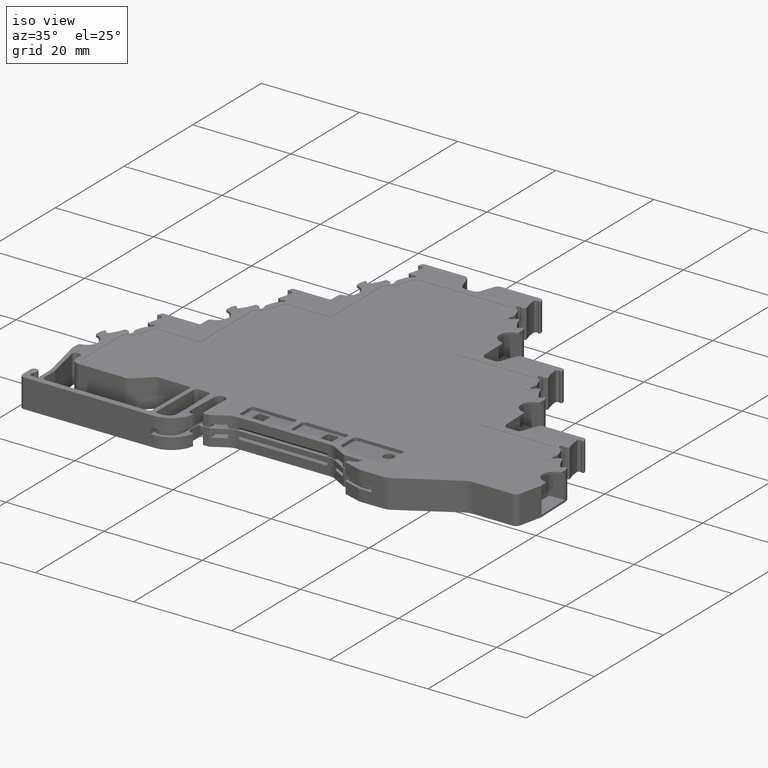
[diagram: clean part render]
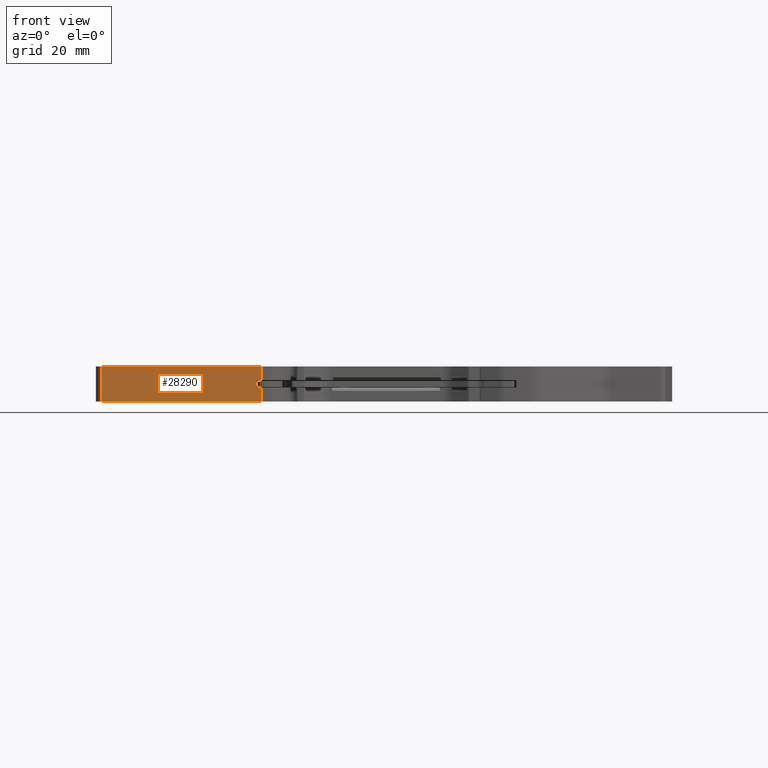
[diagram: tour spotlight — one face highlighted and labeled with its STEP entity id]
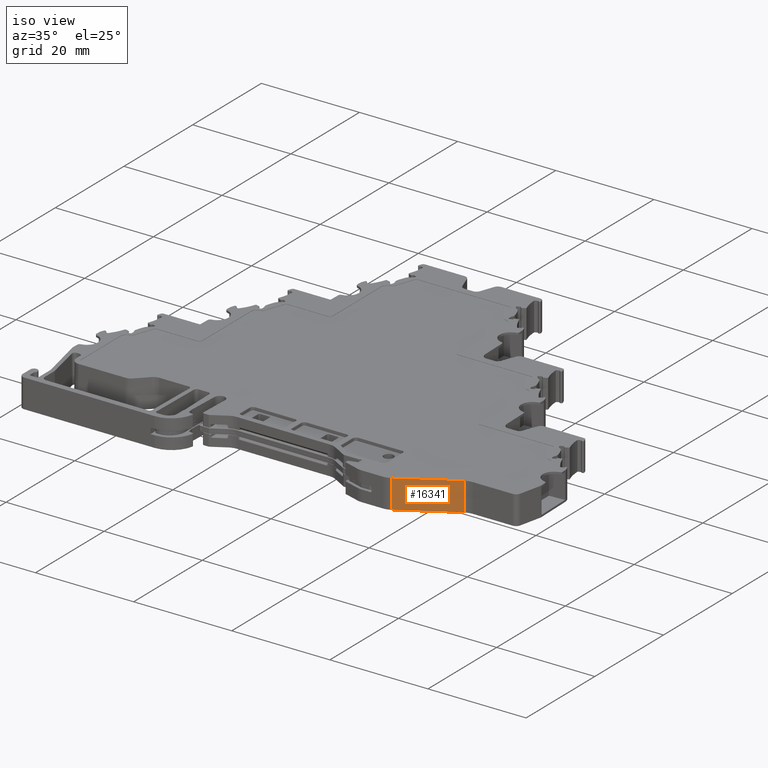
[diagram: tour spotlight — one face highlighted and labeled with its STEP entity id]
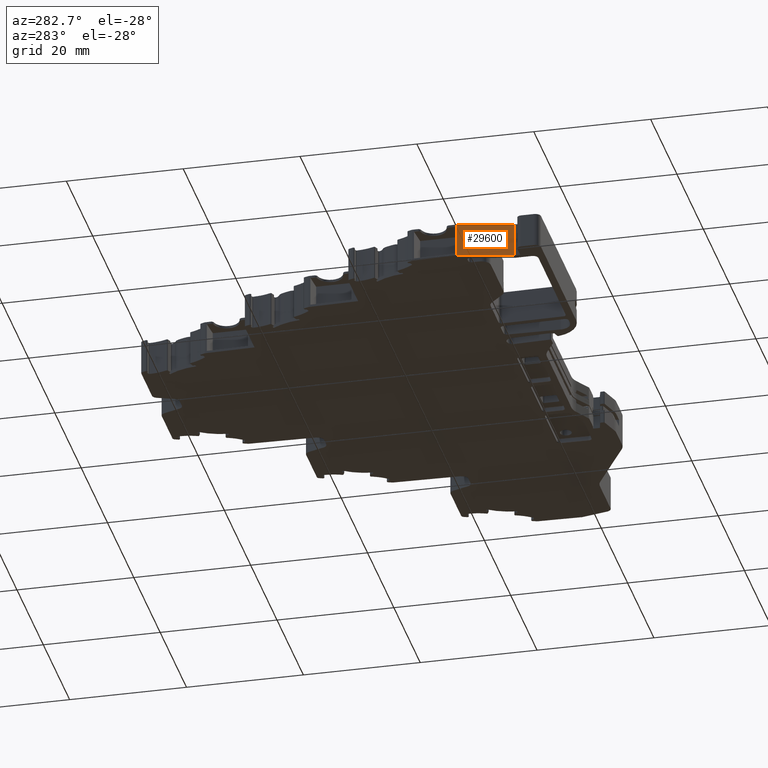
[diagram: tour spotlight — one face highlighted and labeled with its STEP entity id]
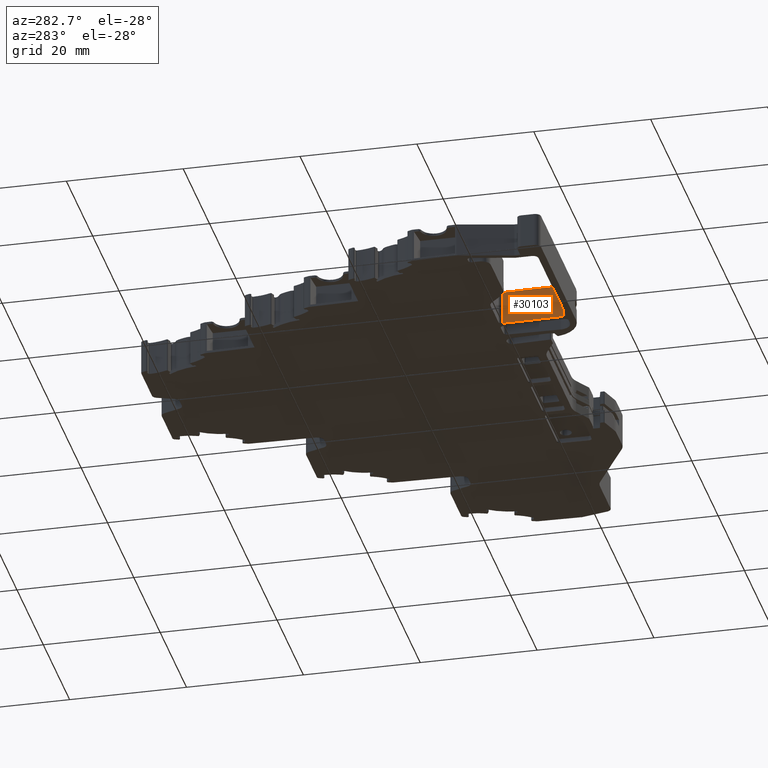
[diagram: tour spotlight — one face highlighted and labeled with its STEP entity id]
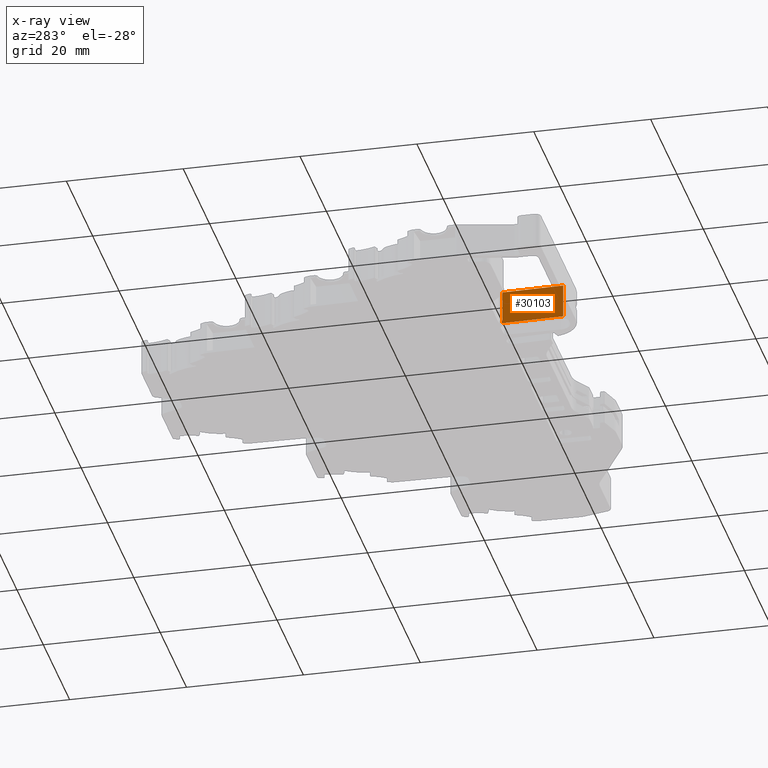
[diagram: x-ray of the same camera — body ghosted, this tour face saturated]
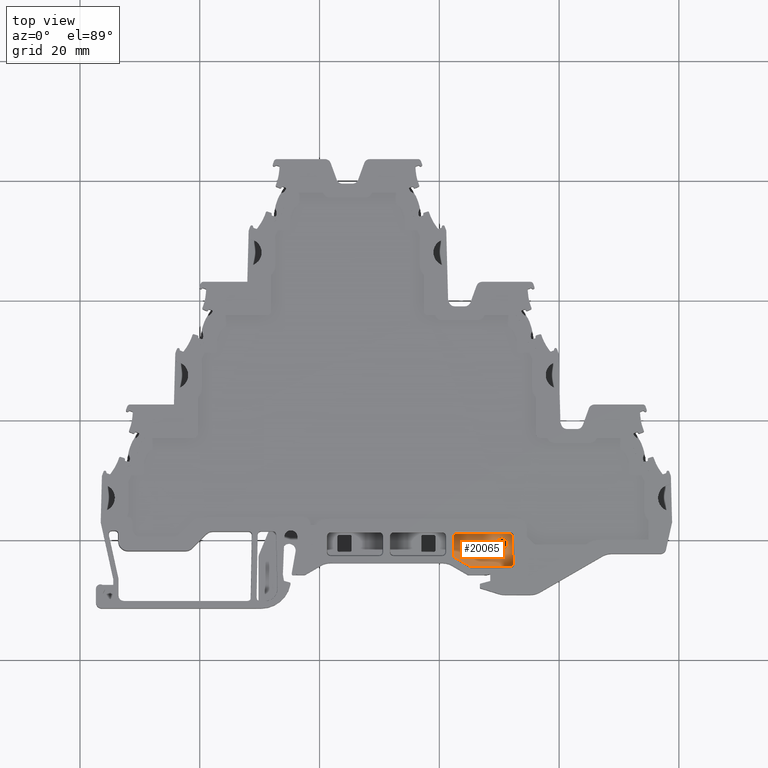
[diagram: tour spotlight — one face highlighted and labeled with its STEP entity id]
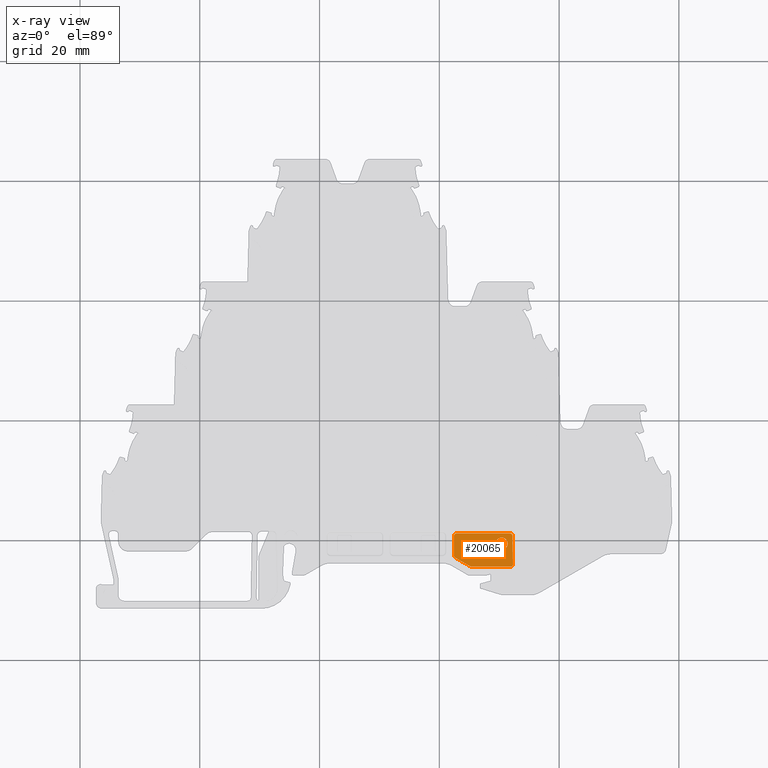
[diagram: x-ray of the same camera — body ghosted, this tour face saturated]
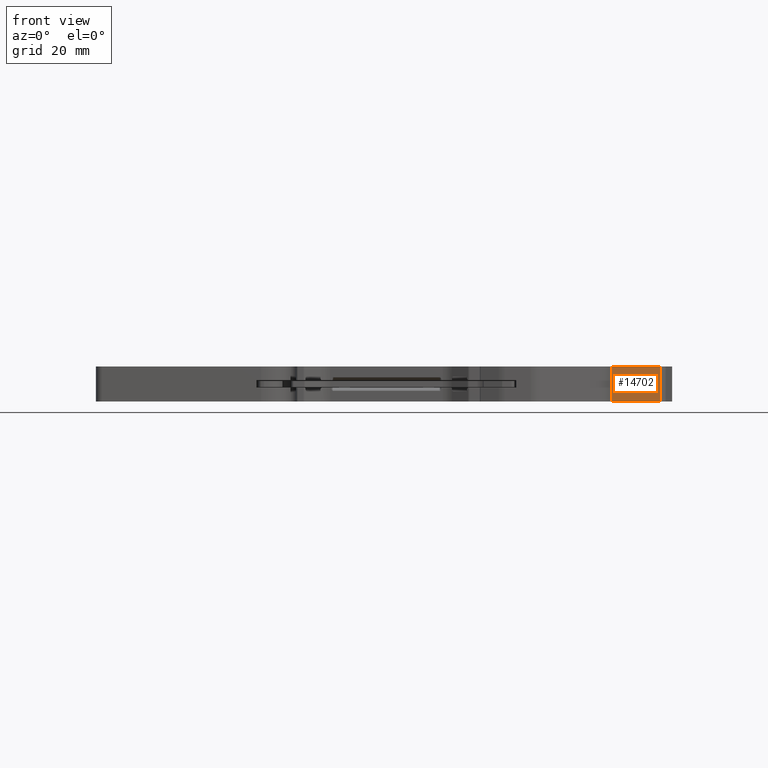
[diagram: tour spotlight — one face highlighted and labeled with its STEP entity id]
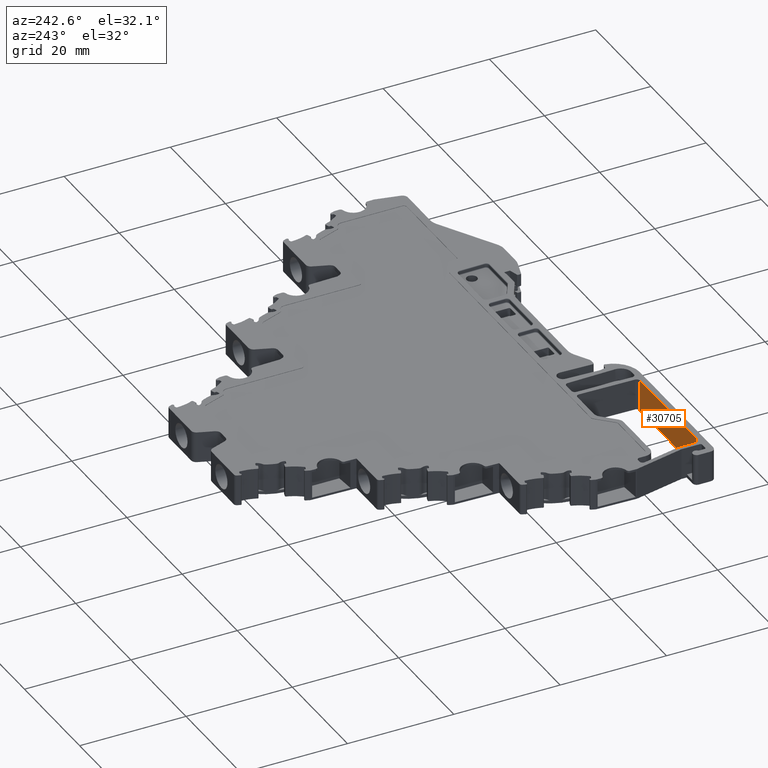
[diagram: tour spotlight — one face highlighted and labeled with its STEP entity id]
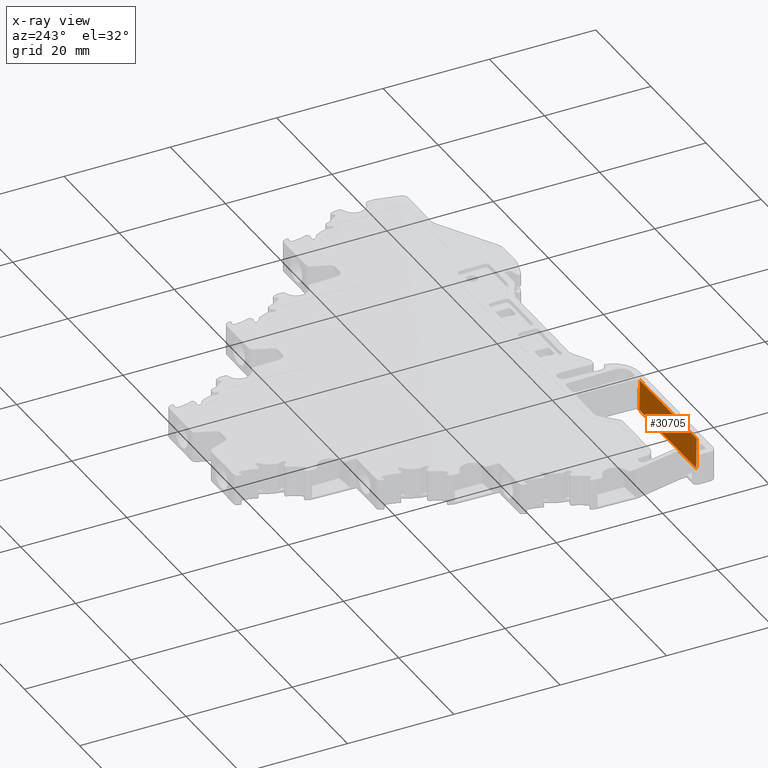
[diagram: x-ray of the same camera — body ghosted, this tour face saturated]
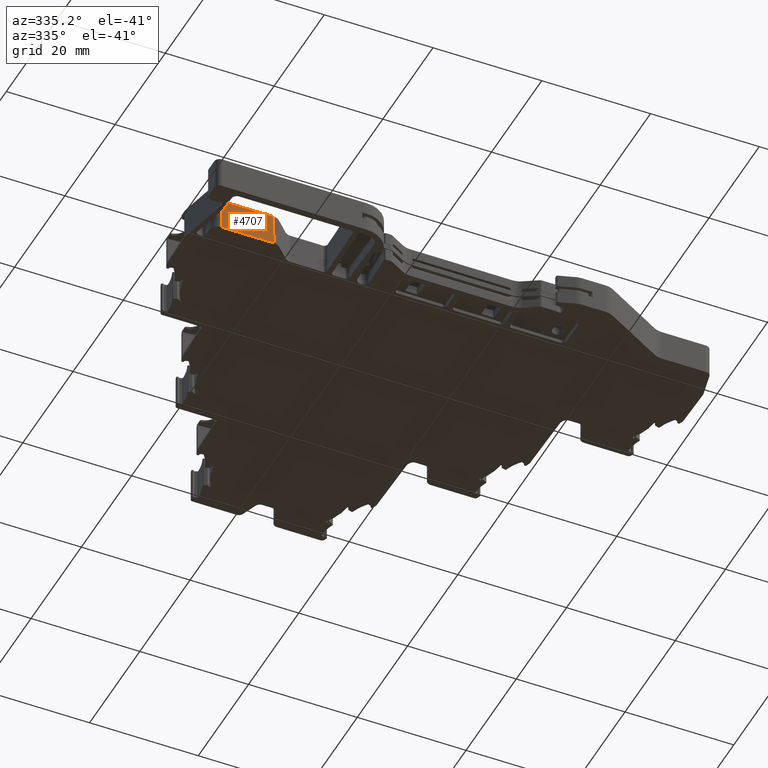
[diagram: tour spotlight — one face highlighted and labeled with its STEP entity id]
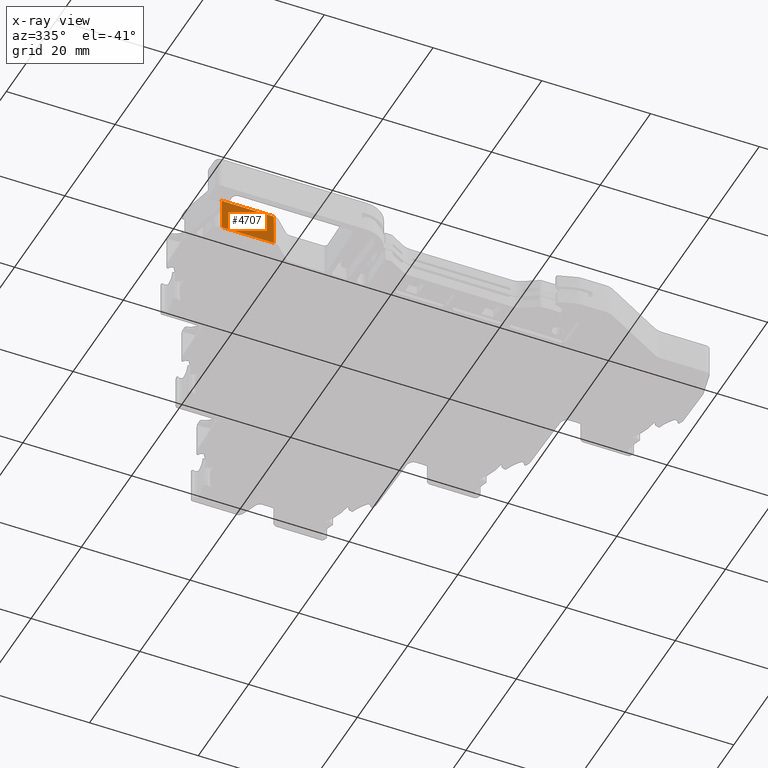
[diagram: x-ray of the same camera — body ghosted, this tour face saturated]
A machine part: a face-by-face anatomy tour. The part has 1124 B-rep faces; the first image is the clean iso view, then the 8 largest visible faces are spotlighted one at a time (largest first), each with its STEP entity span.

Face 1 — front view, entity #28290. In plain terms, the highlighted planar face has unit normal (-0, -1, 0).
Definition (entity closure, byte-faithful):
#50 = DIRECTION ( 'NONE',  ( 0.000000000000000000, 0.000000000000000000, 1.000000000000000000 ) ) ;
#295 = EDGE_CURVE ( 'NONE', #28306, #16494, #25337, .T. ) ;
#420 = VECTOR ( 'NONE', #10841, 1000.000000000000000 ) ;
#983 = CARTESIAN_POINT ( 'NONE',  ( 1250.236955818815886, 748.5878086220640171, 8.673617379884039416E-16 ) ) ;
#1634 = VECTOR ( 'NONE', #50, 1000.000000000000000 ) ;
#2865 = DIRECTION ( 'NONE',  ( -4.177685300582320068E-15, -1.000000000000000000, 0.000000000000000000 ) ) ;
#3018 = VERTEX_POINT ( 'NONE', #3692 ) ;
#3050 = PLANE ( 'NONE',  #17465 ) ;
#3094 = DIRECTION ( 'NONE',  ( 0.000000000000000000, 0.000000000000000000, 1.000000000000000000 ) ) ;
#3344 = EDGE_CURVE ( 'NONE', #31357, #9419, #11938, .T. ) ;
#3583 = EDGE_CURVE ( 'NONE', #9419, #3018, #27565, .T. ) ;
#3692 = CARTESIAN_POINT ( 'NONE',  ( 1249.428791505572008, 748.5878086220640171, 2.324999999999999734 ) ) ;
#5001 = LINE ( 'NONE', #13668, #420 ) ;
#5100 = DIRECTION ( 'NONE',  ( 0.000000000000000000, 0.000000000000000000, -1.000000000000000000 ) ) ;
#5616 = ORIENTED_EDGE ( 'NONE', *, *, #7896, .F. ) ;
#7754 = CARTESIAN_POINT ( 'NONE',  ( 1249.428791505572008, 748.5878086220640171, 8.673617379884039416E-16 ) ) ;
#7896 = EDGE_CURVE ( 'NONE', #34183, #26585, #8105, .T. ) ;
#8003 = CARTESIAN_POINT ( 'NONE',  ( 1223.661880274700025, 748.5878086220640171, 8.673617379884039416E-16 ) ) ;
#8082 = VERTEX_POINT ( 'NONE', #23552 ) ;
#8105 = LINE ( 'NONE', #36750, #13572 ) ;
#9041 = CARTESIAN_POINT ( 'NONE',  ( 1223.661880274700025, 748.5878086220640171, 5.850000000000000533 ) ) ;
#9419 = VERTEX_POINT ( 'NONE', #24438 ) ;
#10234 = ORIENTED_EDGE ( 'NONE', *, *, #17284, .F. ) ;
#10841 = DIRECTION ( 'NONE',  ( 1.000000000000000000, -4.177685300582320068E-15, 0.000000000000000000 ) ) ;
#11938 = LINE ( 'NONE', #29659, #35299 ) ;
#13572 = VECTOR ( 'NONE', #19420, 1000.000000000000000 ) ;
#13668 = CARTESIAN_POINT ( 'NONE',  ( 1250.236955818815886, 748.5878086220640171, 5.850000000000000533 ) ) ;
#14889 = VECTOR ( 'NONE', #5100, 1000.000000000000000 ) ;
#15656 = ORIENTED_EDGE ( 'NONE', *, *, #18305, .T. ) ;
#15875 = DIRECTION ( 'NONE',  ( -1.000000000000000000, 4.177685300582320068E-15, 0.000000000000000000 ) ) ;
#16494 = VERTEX_POINT ( 'NONE', #9041 ) ;
#17284 = EDGE_CURVE ( 'NONE', #16494, #8082, #5001, .T. ) ;
#17465 = AXIS2_PLACEMENT_3D ( 'NONE', #20557, #2865, #20007 ) ;
#18305 = EDGE_CURVE ( 'NONE', #28306, #31357, #32407, .T. ) ;
#19420 = DIRECTION ( 'NONE',  ( -1.000000000000000000, 4.177685300582320068E-15, 0.000000000000000000 ) ) ;
#20007 = DIRECTION ( 'NONE',  ( 1.000000000000000000, -4.177685300582320068E-15, 0.000000000000000000 ) ) ;
#20557 = CARTESIAN_POINT ( 'NONE',  ( 1250.236955818815886, 748.5878086220640171, 8.673617379884039416E-16 ) ) ;
#21280 = ORIENTED_EDGE ( 'NONE', *, *, #31606, .F. ) ;
#21437 = VECTOR ( 'NONE', #29590, 1000.000000000000000 ) ;
#22817 = ORIENTED_EDGE ( 'NONE', *, *, #3344, .T. ) ;
#23552 = CARTESIAN_POINT ( 'NONE',  ( 1250.236955818815886, 748.5878086220640171, 5.850000000000000533 ) ) ;
#23997 = CARTESIAN_POINT ( 'NONE',  ( 1249.428791505572008, 748.5878086220640171, 3.524999999999999911 ) ) ;
#24438 = CARTESIAN_POINT ( 'NONE',  ( 1250.236955818815886, 748.5878086220640171, 2.324999999999999734 ) ) ;
#24898 = CARTESIAN_POINT ( 'NONE',  ( 1250.236955818815886, 748.5878086220640171, 2.324999999999999734 ) ) ;
#25337 = LINE ( 'NONE', #8003, #35536 ) ;
#26585 = VERTEX_POINT ( 'NONE', #23997 ) ;
#27565 = LINE ( 'NONE', #24898, #32518 ) ;
#28290 = ADVANCED_FACE ( 'NONE', ( #30367 ), #3050, .T. ) ;
#28306 = VERTEX_POINT ( 'NONE', #34876 ) ;
#28896 = CARTESIAN_POINT ( 'NONE',  ( 1250.236955818815886, 748.5878086220640171, 8.673617379884039416E-16 ) ) ;
#29590 = DIRECTION ( 'NONE',  ( 1.000000000000000000, -4.177685300582320068E-15, 0.000000000000000000 ) ) ;
#29659 = CARTESIAN_POINT ( 'NONE',  ( 1250.236955818815886, 748.5878086220640171, 8.673617379884039416E-16 ) ) ;
#29761 = CARTESIAN_POINT ( 'NONE',  ( 1250.236955818815886, 748.5878086220640171, 8.673617379884039416E-16 ) ) ;
#30367 = FACE_OUTER_BOUND ( 'NONE', #31938, .T. ) ;
#30986 = DIRECTION ( 'NONE',  ( 0.000000000000000000, 0.000000000000000000, 1.000000000000000000 ) ) ;
#31357 = VERTEX_POINT ( 'NONE', #983 ) ;
#31542 = CARTESIAN_POINT ( 'NONE',  ( 1250.236955818815886, 748.5878086220640171, 3.524999999999999911 ) ) ;
#31606 = EDGE_CURVE ( 'NONE', #26585, #3018, #34317, .T. ) ;
#31938 = EDGE_LOOP ( 'NONE', ( #22817, #35304, #21280, #5616, #32807, #10234, #33150, #15656 ) ) ;
#32407 = LINE ( 'NONE', #29761, #21437 ) ;
#32518 = VECTOR ( 'NONE', #15875, 1000.000000000000000 ) ;
#32807 = ORIENTED_EDGE ( 'NONE', *, *, #37241, .T. ) ;
#33150 = ORIENTED_EDGE ( 'NONE', *, *, #295, .F. ) ;
#34183 = VERTEX_POINT ( 'NONE', #31542 ) ;
#34317 = LINE ( 'NONE', #7754, #14889 ) ;
#34355 = LINE ( 'NONE', #28896, #1634 ) ;
#34876 = CARTESIAN_POINT ( 'NONE',  ( 1223.661880274700025, 748.5878086220640171, 8.673617379884039416E-16 ) ) ;
#35299 = VECTOR ( 'NONE', #3094, 1000.000000000000000 ) ;
#35304 = ORIENTED_EDGE ( 'NONE', *, *, #3583, .T. ) ;
#35536 = VECTOR ( 'NONE', #30986, 1000.000000000000000 ) ;
#36750 = CARTESIAN_POINT ( 'NONE',  ( 1250.236955818815886, 748.5878086220640171, 3.524999999999999911 ) ) ;
#37241 = EDGE_CURVE ( 'NONE', #34183, #8082, #34355, .T. ) ;

Face 2 — iso view, entity #16341. In plain terms, the highlighted planar face has unit normal (0.5, -0.866, 0).
Definition (entity closure, byte-faithful):
#1874 = DIRECTION ( 'NONE',  ( 0.8660254037843647668, 0.5000000000001278977, 0.000000000000000000 ) ) ;
#2073 = CARTESIAN_POINT ( 'NONE',  ( 1296.753666186372129, 751.2504516032539641, 8.673617379884039416E-16 ) ) ;
#3262 = CARTESIAN_POINT ( 'NONE',  ( 1307.232060341954138, 757.3001552896570274, 5.850000000000000533 ) ) ;
#7110 = VERTEX_POINT ( 'NONE', #34397 ) ;
#7836 = EDGE_CURVE ( 'NONE', #13399, #12585, #25443, .T. ) ;
#9137 = CARTESIAN_POINT ( 'NONE',  ( 1307.232060341954138, 757.3001552896570274, 8.673617379884039416E-16 ) ) ;
#9370 = VECTOR ( 'NONE', #33740, 1000.000000000000000 ) ;
#9511 = DIRECTION ( 'NONE',  ( 0.000000000000000000, 0.000000000000000000, 1.000000000000000000 ) ) ;
#10969 = DIRECTION ( 'NONE',  ( 0.8660254037843648778, 0.5000000000001278977, 0.000000000000000000 ) ) ;
#11663 = CARTESIAN_POINT ( 'NONE',  ( 1296.753666186372129, 751.2504516032539641, 8.673617379884039416E-16 ) ) ;
#12585 = VERTEX_POINT ( 'NONE', #33730 ) ;
#13399 = VERTEX_POINT ( 'NONE', #19654 ) ;
#15307 = EDGE_LOOP ( 'NONE', ( #23493, #35318, #29601, #29036 ) ) ;
#16196 = CARTESIAN_POINT ( 'NONE',  ( 1296.753666186372129, 751.2504516032539641, 5.850000000000000533 ) ) ;
#16341 = ADVANCED_FACE ( 'NONE', ( #23160 ), #31140, .T. ) ;
#19577 = LINE ( 'NONE', #25416, #37247 ) ;
#19654 = CARTESIAN_POINT ( 'NONE',  ( 1296.753666186372129, 751.2504516032539641, 8.673617379884039416E-16 ) ) ;
#19903 = DIRECTION ( 'NONE',  ( 0.8660254037843647668, 0.5000000000001278977, 0.000000000000000000 ) ) ;
#19942 = VECTOR ( 'NONE', #19903, 1000.000000000000000 ) ;
#20809 = LINE ( 'NONE', #9137, #36484 ) ;
#23160 = FACE_OUTER_BOUND ( 'NONE', #15307, .T. ) ;
#23493 = ORIENTED_EDGE ( 'NONE', *, *, #34626, .F. ) ;
#25221 = VERTEX_POINT ( 'NONE', #3262 ) ;
#25416 = CARTESIAN_POINT ( 'NONE',  ( 1296.753666186372129, 751.2504516032539641, 8.673617379884039416E-16 ) ) ;
#25443 = LINE ( 'NONE', #2073, #9370 ) ;
#25999 = EDGE_CURVE ( 'NONE', #13399, #7110, #19577, .T. ) ;
#28562 = LINE ( 'NONE', #16196, #19942 ) ;
#29036 = ORIENTED_EDGE ( 'NONE', *, *, #30730, .T. ) ;
#29267 = AXIS2_PLACEMENT_3D ( 'NONE', #11663, #34647, #10969 ) ;
#29601 = ORIENTED_EDGE ( 'NONE', *, *, #25999, .T. ) ;
#30730 = EDGE_CURVE ( 'NONE', #7110, #25221, #20809, .T. ) ;
#31140 = PLANE ( 'NONE',  #29267 ) ;
#33730 = CARTESIAN_POINT ( 'NONE',  ( 1296.753666186372129, 751.2504516032539641, 5.850000000000000533 ) ) ;
#33740 = DIRECTION ( 'NONE',  ( 0.000000000000000000, 0.000000000000000000, 1.000000000000000000 ) ) ;
#34397 = CARTESIAN_POINT ( 'NONE',  ( 1307.232060341954138, 757.3001552896570274, 8.673617379884039416E-16 ) ) ;
#34626 = EDGE_CURVE ( 'NONE', #12585, #25221, #28562, .T. ) ;
#34647 = DIRECTION ( 'NONE',  ( 0.5000000000001278977, -0.8660254037843648778, 0.000000000000000000 ) ) ;
#35318 = ORIENTED_EDGE ( 'NONE', *, *, #7836, .F. ) ;
#36484 = VECTOR ( 'NONE', #9511, 1000.000000000000000 ) ;
#37247 = VECTOR ( 'NONE', #1874, 1000.000000000000000 ) ;

Face 3 — auxiliary view, entity #29600. In plain terms, the highlighted planar face has unit normal (-0.9763, -0.2164, 0).
Definition (entity closure, byte-faithful):
#324 = VERTEX_POINT ( 'NONE', #18176 ) ;
#1495 = CARTESIAN_POINT ( 'NONE',  ( 1225.549973231369904, 753.6372865727610133, 8.673617379884039416E-16 ) ) ;
#1740 = CARTESIAN_POINT ( 'NONE',  ( 1225.549973231369904, 753.6372865727610133, 8.673617379884039416E-16 ) ) ;
#2348 = LINE ( 'NONE', #8195, #16329 ) ;
#3788 = DIRECTION ( 'NONE',  ( 0.2164396139379983763, -0.9762960071199564549, 0.000000000000000000 ) ) ;
#4567 = DIRECTION ( 'NONE',  ( 0.2164396139379984318, -0.9762960071199564549, 0.000000000000000000 ) ) ;
#7124 = DIRECTION ( 'NONE',  ( 0.000000000000000000, 0.000000000000000000, 1.000000000000000000 ) ) ;
#7858 = ORIENTED_EDGE ( 'NONE', *, *, #29455, .T. ) ;
#8195 = CARTESIAN_POINT ( 'NONE',  ( 1225.549973231369904, 753.6372865727610133, 8.673617379884039416E-16 ) ) ;
#8533 = DIRECTION ( 'NONE',  ( 0.2164396139379984318, -0.9762960071199564549, 0.000000000000000000 ) ) ;
#9409 = EDGE_CURVE ( 'NONE', #14324, #324, #33476, .T. ) ;
#9775 = ORIENTED_EDGE ( 'NONE', *, *, #9409, .F. ) ;
#10445 = EDGE_CURVE ( 'NONE', #324, #12282, #33944, .T. ) ;
#10563 = EDGE_LOOP ( 'NONE', ( #9775, #32028, #7858, #17510 ) ) ;
#11161 = CARTESIAN_POINT ( 'NONE',  ( 1225.549973231369904, 753.6372865727610133, 5.850000000000000533 ) ) ;
#12282 = VERTEX_POINT ( 'NONE', #11161 ) ;
#13052 = LINE ( 'NONE', #1740, #25554 ) ;
#14138 = VECTOR ( 'NONE', #7124, 1000.000000000000000 ) ;
#14324 = VERTEX_POINT ( 'NONE', #30687 ) ;
#15970 = CARTESIAN_POINT ( 'NONE',  ( 1223.462431533193921, 763.0535786624709544, 8.673617379884039416E-16 ) ) ;
#16329 = VECTOR ( 'NONE', #37203, 1000.000000000000000 ) ;
#16481 = VECTOR ( 'NONE', #8533, 1000.000000000000114 ) ;
#17510 = ORIENTED_EDGE ( 'NONE', *, *, #10445, .F. ) ;
#18176 = CARTESIAN_POINT ( 'NONE',  ( 1223.462431533193921, 763.0535786624709544, 5.850000000000000533 ) ) ;
#19952 = AXIS2_PLACEMENT_3D ( 'NONE', #1495, #35985, #3788 ) ;
#20769 = EDGE_CURVE ( 'NONE', #14324, #32895, #13052, .T. ) ;
#23382 = CARTESIAN_POINT ( 'NONE',  ( 1225.549973231369904, 753.6372865727610133, 8.673617379884039416E-16 ) ) ;
#24499 = FACE_OUTER_BOUND ( 'NONE', #10563, .T. ) ;
#25554 = VECTOR ( 'NONE', #4567, 1000.000000000000114 ) ;
#25668 = CARTESIAN_POINT ( 'NONE',  ( 1225.549973231369904, 753.6372865727610133, 5.850000000000000533 ) ) ;
#29455 = EDGE_CURVE ( 'NONE', #32895, #12282, #2348, .T. ) ;
#29600 = ADVANCED_FACE ( 'NONE', ( #24499 ), #32789, .T. ) ;
#30687 = CARTESIAN_POINT ( 'NONE',  ( 1223.462431533193921, 763.0535786624709544, 8.673617379884039416E-16 ) ) ;
#32028 = ORIENTED_EDGE ( 'NONE', *, *, #20769, .T. ) ;
#32789 = PLANE ( 'NONE',  #19952 ) ;
#32895 = VERTEX_POINT ( 'NONE', #23382 ) ;
#33476 = LINE ( 'NONE', #15970, #14138 ) ;
#33944 = LINE ( 'NONE', #25668, #16481 ) ;
#35985 = DIRECTION ( 'NONE',  ( -0.9762960071199565659, -0.2164396139379984041, 0.000000000000000000 ) ) ;
#37203 = DIRECTION ( 'NONE',  ( 0.000000000000000000, 0.000000000000000000, 1.000000000000000000 ) ) ;

Face 4 — auxiliary view, entity #30103. An x-ray twin of the same camera follows (body ghosted, this face saturated) — the face is partly hidden behind the body. In plain terms, the highlighted planar face has unit normal (0.9998, -0.0175, -0.0087).
Definition (entity closure, byte-faithful):
#774 = VERTEX_POINT ( 'NONE', #14341 ) ;
#1637 = VECTOR ( 'NONE', #20688, 999.9999999999998863 ) ;
#4476 = DIRECTION ( 'NONE',  ( 0.9998096240198627305, -0.01745174190321427399, -0.008726535498373948554 ) ) ;
#7492 = VERTEX_POINT ( 'NONE', #16465 ) ;
#8665 = ORIENTED_EDGE ( 'NONE', *, *, #34803, .F. ) ;
#11548 = DIRECTION ( 'NONE',  ( -0.01745240643737424463, -0.9998476951563897153, 0.000000000000000000 ) ) ;
#12030 = LINE ( 'NONE', #15426, #1637 ) ;
#12493 = DIRECTION ( 'NONE',  ( 0.008725206404749613273, -0.0001522990443082445191, 0.9999619230641713097 ) ) ;
#12849 = CARTESIAN_POINT ( 'NONE',  ( 1248.560248469465932, 750.3978310575970454, 5.850000000000000533 ) ) ;
#14175 = LINE ( 'NONE', #16644, #15136 ) ;
#14341 = CARTESIAN_POINT ( 'NONE',  ( 1248.560248469465932, 750.3978310575970454, 5.850000000000000533 ) ) ;
#15136 = VECTOR ( 'NONE', #34341, 1000.000000000000114 ) ;
#15426 = CARTESIAN_POINT ( 'NONE',  ( 1248.560248469465932, 750.3978310575970454, 5.850000000000000533 ) ) ;
#16465 = CARTESIAN_POINT ( 'NONE',  ( 1248.742507147593869, 760.8394237343400164, 5.850000000000000533 ) ) ;
#16518 = ORIENTED_EDGE ( 'NONE', *, *, #37262, .T. ) ;
#16644 = CARTESIAN_POINT ( 'NONE',  ( 1248.742507147593869, 760.8394237343400164, 5.850000000000000533 ) ) ;
#17152 = ORIENTED_EDGE ( 'NONE', *, *, #19709, .T. ) ;
#17404 = VECTOR ( 'NONE', #12493, 1000.000000000000114 ) ;
#19662 = CARTESIAN_POINT ( 'NONE',  ( 1248.674918033362019, 759.8924687362049326, 8.673617379884039416E-16 ) ) ;
#19709 = EDGE_CURVE ( 'NONE', #774, #7492, #12030, .T. ) ;
#20639 = VERTEX_POINT ( 'NONE', #30569 ) ;
#20688 = DIRECTION ( 'NONE',  ( 0.01745240643737424463, 0.9998476951563897153, 0.000000000000000000 ) ) ;
#21762 = AXIS2_PLACEMENT_3D ( 'NONE', #27843, #4476, #24822 ) ;
#21987 = FACE_OUTER_BOUND ( 'NONE', #26705, .T. ) ;
#24219 = EDGE_CURVE ( 'NONE', #25077, #774, #33183, .T. ) ;
#24822 = DIRECTION ( 'NONE',  ( 0.01745240643737424116, 0.9998476951563896042, 0.000000000000000000 ) ) ;
#25077 = VERTEX_POINT ( 'NONE', #36625 ) ;
#26550 = ORIENTED_EDGE ( 'NONE', *, *, #24219, .T. ) ;
#26705 = EDGE_LOOP ( 'NONE', ( #16518, #26550, #17152, #8665 ) ) ;
#27843 = CARTESIAN_POINT ( 'NONE',  ( 1248.560248469465932, 750.3978310575970454, 5.850000000000000533 ) ) ;
#30103 = ADVANCED_FACE ( 'NONE', ( #21987 ), #30295, .F. ) ;
#30295 = PLANE ( 'NONE',  #21762 ) ;
#30569 = CARTESIAN_POINT ( 'NONE',  ( 1248.691462746511888, 760.8403147176750281, 8.673617379884039416E-16 ) ) ;
#31526 = LINE ( 'NONE', #19662, #37150 ) ;
#33183 = LINE ( 'NONE', #12849, #17404 ) ;
#34341 = DIRECTION ( 'NONE',  ( 0.008725206404749623681, -0.0001522990443077965538, 0.9999619230641713097 ) ) ;
#34803 = EDGE_CURVE ( 'NONE', #20639, #7492, #14175, .T. ) ;
#36625 = CARTESIAN_POINT ( 'NONE',  ( 1248.509204068383951, 750.3987220409330803, 8.673617379884039416E-16 ) ) ;
#37150 = VECTOR ( 'NONE', #11548, 999.9999999999998863 ) ;
#37262 = EDGE_CURVE ( 'NONE', #20639, #25077, #31526, .T. ) ;

Face 5 — top view, entity #20065. An x-ray twin of the same camera follows (body ghosted, this face saturated) — the face is partly hidden behind the body. In plain terms, the highlighted planar face has unit normal (0, 0, -1).
Definition (entity closure, byte-faithful):
#467 = VECTOR ( 'NONE', #21788, 1000.000000000000000 ) ;
#570 = DIRECTION ( 'NONE',  ( 0.000000000000000000, 0.000000000000000000, 1.000000000000000000 ) ) ;
#967 = EDGE_CURVE ( 'NONE', #19018, #28474, #24468, .T. ) ;
#1341 = EDGE_CURVE ( 'NONE', #30255, #27838, #9577, .T. ) ;
#1616 = AXIS2_PLACEMENT_3D ( 'NONE', #12610, #35588, #10330 ) ;
#1682 = DIRECTION ( 'NONE',  ( -1.000000000000000000, 0.000000000000000000, 0.000000000000000000 ) ) ;
#1770 = VERTEX_POINT ( 'NONE', #17468 ) ;
#2492 = DIRECTION ( 'NONE',  ( 0.8660238551009116215, -0.5000026823889597294, 0.000000000000000000 ) ) ;
#2938 = CARTESIAN_POINT ( 'NONE',  ( 1285.185603127611785, 755.5681676546489598, 5.049999999999999822 ) ) ;
#3760 = CIRCLE ( 'NONE', #21790, 0.4386313585900136758 ) ;
#4573 = DIRECTION ( 'NONE',  ( -1.000000000000000000, 0.000000000000000000, 0.000000000000000000 ) ) ;
#4851 = CARTESIAN_POINT ( 'NONE',  ( 1282.433324345970050, 757.4104509437529487, 5.049999999999999822 ) ) ;
#5454 =( BOUNDED_CURVE ( )  B_SPLINE_CURVE ( 3, ( #2938, #11423, #25934, #22911 ),
 .UNSPECIFIED., .F., .F. ) 
 B_SPLINE_CURVE_WITH_KNOTS ( ( 4, 4 ),
 ( 2.879832527102528683, 3.403352780074893946 ),
 .UNSPECIFIED. ) 
 CURVE ( )  GEOMETRIC_REPRESENTATION_ITEM ( )  RATIONAL_B_SPLINE_CURVE ( ( 1.000000000000000000, 0.9772906580800890808, 0.9772906580800890808, 1.000000000000000000 ) ) 
 REPRESENTATION_ITEM ( '' )  );
#6496 = AXIS2_PLACEMENT_3D ( 'NONE', #21972, #15967, #13321 ) ;
#7478 = LINE ( 'NONE', #4851, #467 ) ;
#7697 = VECTOR ( 'NONE', #30228, 1000.000000000000114 ) ;
#8434 = PLANE ( 'NONE',  #29985 ) ;
#8794 = DIRECTION ( 'NONE',  ( -1.000000000000000000, 0.000000000000000000, 0.000000000000000000 ) ) ;
#8868 = CIRCLE ( 'NONE', #1616, 0.4386313585900136758 ) ;
#9577 = LINE ( 'NONE', #34997, #37267 ) ;
#9997 = CARTESIAN_POINT ( 'NONE',  ( 1289.411855569846239, 759.3850622030839759, 5.049999999999999822 ) ) ;
#10055 = DIRECTION ( 'NONE',  ( 0.000000000000000000, 0.000000000000000000, 1.000000000000000000 ) ) ;
#10330 = DIRECTION ( 'NONE',  ( -1.000000000000000000, 0.000000000000000000, 0.000000000000000000 ) ) ;
#11325 = ORIENTED_EDGE ( 'NONE', *, *, #19902, .T. ) ;
#11423 = CARTESIAN_POINT ( 'NONE',  ( 1285.239111314113416, 755.5372744677904393, 5.049999999999999822 ) ) ;
#11780 = VECTOR ( 'NONE', #4573, 1000.000000000000000 ) ;
#12522 = DIRECTION ( 'NONE',  ( -1.000000000000000000, 0.000000000000000000, 0.000000000000000000 ) ) ;
#12561 = CARTESIAN_POINT ( 'NONE',  ( 1291.784358003731768, 761.0819813859491205, 5.049999999999999822 ) ) ;
#12610 = CARTESIAN_POINT ( 'NONE',  ( 1282.871955704559923, 757.4104509437529487, 5.049999999999999822 ) ) ;
#13267 = EDGE_CURVE ( 'NONE', #33339, #15817, #3760, .T. ) ;
#13321 = DIRECTION ( 'NONE',  ( -1.000000000000000000, 0.000000000000000000, 0.000000000000000000 ) ) ;
#13710 = VERTEX_POINT ( 'NONE', #24317 ) ;
#14574 = VERTEX_POINT ( 'NONE', #29359 ) ;
#14860 = AXIS2_PLACEMENT_3D ( 'NONE', #24115, #570, #35606 ) ;
#15734 = CARTESIAN_POINT ( 'NONE',  ( 1292.222922556642061, 760.6510052001060558, 5.049999999999999822 ) ) ;
#15817 = VERTEX_POINT ( 'NONE', #12561 ) ;
#15851 = EDGE_LOOP ( 'NONE', ( #24181, #20683 ) ) ;
#15967 = DIRECTION ( 'NONE',  ( -0.000000000000000000, -0.000000000000000000, 1.000000000000000000 ) ) ;
#16121 = CARTESIAN_POINT ( 'NONE',  ( 1282.871955704559923, 761.0819813859491205, 5.049999999999999822 ) ) ;
#17171 = ORIENTED_EDGE ( 'NONE', *, *, #18555, .T. ) ;
#17468 = CARTESIAN_POINT ( 'NONE',  ( 1292.304672227782021, 755.9675696770959803, 5.049999999999999822 ) ) ;
#17498 = CIRCLE ( 'NONE', #18098, 0.9999999999998898659 ) ;
#17876 = DIRECTION ( 'NONE',  ( 1.000000000000000000, -5.014151599221030134E-14, 0.000000000000000000 ) ) ;
#17949 = ORIENTED_EDGE ( 'NONE', *, *, #22804, .T. ) ;
#18098 = AXIS2_PLACEMENT_3D ( 'NONE', #29478, #10055, #27199 ) ;
#18555 = EDGE_CURVE ( 'NONE', #13710, #30255, #5454, .T. ) ;
#19018 = VERTEX_POINT ( 'NONE', #35981 ) ;
#19425 = EDGE_CURVE ( 'NONE', #27838, #1770, #31165, .T. ) ;
#19573 = CARTESIAN_POINT ( 'NONE',  ( 1291.866107674873774, 755.9599145043499675, 5.049999999999999822 ) ) ;
#19784 = EDGE_CURVE ( 'NONE', #33889, #33161, #7478, .T. ) ;
#19902 = EDGE_CURVE ( 'NONE', #34002, #33889, #32371, .T. ) ;
#20065 = ADVANCED_FACE ( 'NONE', ( #34235, #23102 ), #8434, .F. ) ;
#20299 = CARTESIAN_POINT ( 'NONE',  ( 1285.360577412955990, 755.5212831457599805, 5.049999999999999822 ) ) ;
#20364 = EDGE_LOOP ( 'NONE', ( #37109, #17949, #28430, #17171, #30908, #22566, #36936, #29166, #22008, #11325 ) ) ;
#20683 = ORIENTED_EDGE ( 'NONE', *, *, #34286, .F. ) ;
#20689 = CARTESIAN_POINT ( 'NONE',  ( 1292.222922556642061, 760.6510052001051463, 5.049999999999999822 ) ) ;
#21518 = AXIS2_PLACEMENT_3D ( 'NONE', #19573, #28064, #1682 ) ;
#21788 = DIRECTION ( 'NONE',  ( -6.868281353136440796E-14, -1.000000000000000000, 0.000000000000000000 ) ) ;
#21790 = AXIS2_PLACEMENT_3D ( 'NONE', #24010, #36227, #12522 ) ;
#21963 = EDGE_CURVE ( 'NONE', #15817, #34002, #27204, .T. ) ;
#21972 = CARTESIAN_POINT ( 'NONE',  ( 1282.871955704559923, 760.6433500273590198, 5.049999999999999822 ) ) ;
#22008 = ORIENTED_EDGE ( 'NONE', *, *, #21963, .T. ) ;
#22566 = ORIENTED_EDGE ( 'NONE', *, *, #19425, .T. ) ;
#22581 = CARTESIAN_POINT ( 'NONE',  ( 1282.433324345970050, 757.4104509437529487, 5.049999999999999822 ) ) ;
#22804 = EDGE_CURVE ( 'NONE', #33161, #14574, #8868, .T. ) ;
#22911 = CARTESIAN_POINT ( 'NONE',  ( 1285.360577412955990, 755.5212831457599805, 5.049999999999999822 ) ) ;
#23102 = FACE_OUTER_BOUND ( 'NONE', #20364, .T. ) ;
#24010 = CARTESIAN_POINT ( 'NONE',  ( 1291.784358003731768, 760.6433500273590198, 5.049999999999999822 ) ) ;
#24115 = CARTESIAN_POINT ( 'NONE',  ( 1290.411855569846011, 759.3850622030839759, 5.049999999999999822 ) ) ;
#24181 = ORIENTED_EDGE ( 'NONE', *, *, #967, .F. ) ;
#24317 = CARTESIAN_POINT ( 'NONE',  ( 1285.185603127611785, 755.5681676546489598, 5.049999999999999822 ) ) ;
#24393 = CARTESIAN_POINT ( 'NONE',  ( 1282.433324345970050, 760.6433500273590198, 5.049999999999999822 ) ) ;
#24468 = CIRCLE ( 'NONE', #14860, 0.9999999999998898659 ) ;
#25934 = CARTESIAN_POINT ( 'NONE',  ( 1285.298791370705885, 755.5212831457608900, 5.049999999999999822 ) ) ;
#26754 = EDGE_CURVE ( 'NONE', #14574, #13710, #30766, .T. ) ;
#27099 = VECTOR ( 'NONE', #2492, 1000.000000000000114 ) ;
#27199 = DIRECTION ( 'NONE',  ( 1.000000000000000000, 0.000000000000000000, 0.000000000000000000 ) ) ;
#27204 = LINE ( 'NONE', #30767, #11780 ) ;
#27597 = LINE ( 'NONE', #15734, #7697 ) ;
#27838 = VERTEX_POINT ( 'NONE', #33615 ) ;
#28064 = DIRECTION ( 'NONE',  ( -0.000000000000000000, -0.000000000000000000, 1.000000000000000000 ) ) ;
#28430 = ORIENTED_EDGE ( 'NONE', *, *, #26754, .T. ) ;
#28474 = VERTEX_POINT ( 'NONE', #9997 ) ;
#28577 = CARTESIAN_POINT ( 'NONE',  ( 1291.784358003731768, 760.6433500273590198, 5.049999999999999822 ) ) ;
#29166 = ORIENTED_EDGE ( 'NONE', *, *, #13267, .T. ) ;
#29359 = CARTESIAN_POINT ( 'NONE',  ( 1282.652638848686138, 757.0305857236190832, 5.049999999999999822 ) ) ;
#29478 = CARTESIAN_POINT ( 'NONE',  ( 1290.411855569846011, 759.3850622030839759, 5.049999999999999822 ) ) ;
#29985 = AXIS2_PLACEMENT_3D ( 'NONE', #28577, #34587, #8794 ) ;
#30228 = DIRECTION ( 'NONE',  ( -0.01745240643731259603, 0.9998476951563907145, 0.000000000000000000 ) ) ;
#30255 = VERTEX_POINT ( 'NONE', #20299 ) ;
#30766 = LINE ( 'NONE', #36392, #27099 ) ;
#30767 = CARTESIAN_POINT ( 'NONE',  ( 1282.871955704559923, 761.0819813859491205, 5.049999999999999822 ) ) ;
#30908 = ORIENTED_EDGE ( 'NONE', *, *, #1341, .T. ) ;
#30954 = EDGE_CURVE ( 'NONE', #1770, #33339, #27597, .T. ) ;
#31165 = CIRCLE ( 'NONE', #21518, 0.4386313585900136758 ) ;
#32371 = CIRCLE ( 'NONE', #6496, 0.4386313585897916312 ) ;
#33161 = VERTEX_POINT ( 'NONE', #22581 ) ;
#33339 = VERTEX_POINT ( 'NONE', #20689 ) ;
#33615 = CARTESIAN_POINT ( 'NONE',  ( 1291.866107674873774, 755.5212831457599805, 5.049999999999999822 ) ) ;
#33889 = VERTEX_POINT ( 'NONE', #24393 ) ;
#34002 = VERTEX_POINT ( 'NONE', #16121 ) ;
#34235 = FACE_BOUND ( 'NONE', #15851, .T. ) ;
#34286 = EDGE_CURVE ( 'NONE', #28474, #19018, #17498, .T. ) ;
#34587 = DIRECTION ( 'NONE',  ( 0.000000000000000000, 0.000000000000000000, -1.000000000000000000 ) ) ;
#34997 = CARTESIAN_POINT ( 'NONE',  ( 1291.866107674873774, 755.5212831457599805, 5.049999999999999822 ) ) ;
#35588 = DIRECTION ( 'NONE',  ( -0.000000000000000000, -0.000000000000000000, 1.000000000000000000 ) ) ;
#35606 = DIRECTION ( 'NONE',  ( 1.000000000000000000, 0.000000000000000000, 0.000000000000000000 ) ) ;
#35981 = CARTESIAN_POINT ( 'NONE',  ( 1291.411855569846011, 759.3850622030839759, 5.049999999999999822 ) ) ;
#36227 = DIRECTION ( 'NONE',  ( -0.000000000000000000, -0.000000000000000000, 1.000000000000000000 ) ) ;
#36392 = CARTESIAN_POINT ( 'NONE',  ( 1285.185006159239947, 755.5685123169649842, 5.049999999999999822 ) ) ;
#36936 = ORIENTED_EDGE ( 'NONE', *, *, #30954, .T. ) ;
#37109 = ORIENTED_EDGE ( 'NONE', *, *, #19784, .T. ) ;
#37267 = VECTOR ( 'NONE', #17876, 1000.000000000000000 ) ;

Face 6 — front view, entity #14702. In plain terms, the highlighted planar face has unit normal (-0, -1, 0).
Definition (entity closure, byte-faithful):
#1620 = DIRECTION ( 'NONE',  ( 1.000000000000000000, -1.363870888245286172E-14, 0.000000000000000000 ) ) ;
#2383 = CARTESIAN_POINT ( 'NONE',  ( 1316.872295859802080, 757.7020790783039956, 8.673617379884039416E-16 ) ) ;
#4034 = DIRECTION ( 'NONE',  ( 1.000000000000000000, -1.363870888245286172E-14, 0.000000000000000000 ) ) ;
#4109 = VECTOR ( 'NONE', #18776, 1000.000000000000000 ) ;
#5457 = ORIENTED_EDGE ( 'NONE', *, *, #14631, .T. ) ;
#6305 = VERTEX_POINT ( 'NONE', #11167 ) ;
#7278 = LINE ( 'NONE', #24409, #4109 ) ;
#7289 = CARTESIAN_POINT ( 'NONE',  ( 1316.872295859802080, 757.7020790783039956, 8.673617379884039416E-16 ) ) ;
#7735 = ORIENTED_EDGE ( 'NONE', *, *, #17460, .F. ) ;
#8281 = CARTESIAN_POINT ( 'NONE',  ( 1316.872295859802080, 757.7020790783039956, 8.673617379884039416E-16 ) ) ;
#9875 = VECTOR ( 'NONE', #20030, 1000.000000000000000 ) ;
#10124 = LINE ( 'NONE', #7289, #9875 ) ;
#11167 = CARTESIAN_POINT ( 'NONE',  ( 1308.732060341956185, 757.7020790783039956, 5.850000000000000533 ) ) ;
#11660 = AXIS2_PLACEMENT_3D ( 'NONE', #33264, #17222, #1620 ) ;
#14016 = CARTESIAN_POINT ( 'NONE',  ( 1308.732060341956185, 757.7020790783039956, 8.673617379884039416E-16 ) ) ;
#14631 = EDGE_CURVE ( 'NONE', #25135, #19576, #10124, .T. ) ;
#14647 = ORIENTED_EDGE ( 'NONE', *, *, #30576, .F. ) ;
#14702 = ADVANCED_FACE ( 'NONE', ( #25693 ), #36101, .T. ) ;
#17222 = DIRECTION ( 'NONE',  ( -1.363870888245286172E-14, -1.000000000000000000, 0.000000000000000000 ) ) ;
#17460 = EDGE_CURVE ( 'NONE', #6305, #29804, #35669, .T. ) ;
#17917 = ORIENTED_EDGE ( 'NONE', *, *, #32323, .T. ) ;
#18776 = DIRECTION ( 'NONE',  ( 0.000000000000000000, 0.000000000000000000, 1.000000000000000000 ) ) ;
#19576 = VERTEX_POINT ( 'NONE', #8281 ) ;
#19728 = DIRECTION ( 'NONE',  ( 0.000000000000000000, 0.000000000000000000, 1.000000000000000000 ) ) ;
#20030 = DIRECTION ( 'NONE',  ( 1.000000000000000000, -1.363870888245286172E-14, 0.000000000000000000 ) ) ;
#21962 = LINE ( 'NONE', #2383, #25168 ) ;
#24409 = CARTESIAN_POINT ( 'NONE',  ( 1308.732060341956185, 757.7020790783039956, 8.673617379884039416E-16 ) ) ;
#25135 = VERTEX_POINT ( 'NONE', #14016 ) ;
#25168 = VECTOR ( 'NONE', #19728, 1000.000000000000000 ) ;
#25693 = FACE_OUTER_BOUND ( 'NONE', #36782, .T. ) ;
#29804 = VERTEX_POINT ( 'NONE', #33536 ) ;
#30214 = CARTESIAN_POINT ( 'NONE',  ( 1316.872295859802080, 757.7020790783039956, 5.850000000000000533 ) ) ;
#30576 = EDGE_CURVE ( 'NONE', #25135, #6305, #7278, .T. ) ;
#32323 = EDGE_CURVE ( 'NONE', #19576, #29804, #21962, .T. ) ;
#33264 = CARTESIAN_POINT ( 'NONE',  ( 1316.872295859802080, 757.7020790783039956, 8.673617379884039416E-16 ) ) ;
#33373 = VECTOR ( 'NONE', #4034, 1000.000000000000000 ) ;
#33536 = CARTESIAN_POINT ( 'NONE',  ( 1316.872295859802080, 757.7020790783039956, 5.850000000000000533 ) ) ;
#35669 = LINE ( 'NONE', #30214, #33373 ) ;
#36101 = PLANE ( 'NONE',  #11660 ) ;
#36782 = EDGE_LOOP ( 'NONE', ( #7735, #14647, #5457, #17917 ) ) ;

Face 7 — auxiliary view, entity #30705. An x-ray twin of the same camera follows (body ghosted, this face saturated) — the face is partly hidden behind the body. In plain terms, the highlighted planar face has unit normal (-0, -1, -0.0087).
Definition (entity closure, byte-faithful):
#3167 = VECTOR ( 'NONE', #25878, 1000.000000000000000 ) ;
#3240 = CARTESIAN_POINT ( 'NONE',  ( 1227.361819579513849, 749.8083025014600480, 5.850000000000000533 ) ) ;
#4283 = DIRECTION ( 'NONE',  ( -1.881377983887415559E-16, -0.008726535498373952024, 0.9999619230641713097 ) ) ;
#4975 = EDGE_CURVE ( 'NONE', #26065, #22638, #27760, .T. ) ;
#5928 = DIRECTION ( 'NONE',  ( 0.000000000000000000, 0.008726535498373953759, -0.9999619230641713097 ) ) ;
#6487 = AXIS2_PLACEMENT_3D ( 'NONE', #16892, #31931, #5928 ) ;
#9933 = LINE ( 'NONE', #12763, #23947 ) ;
#10698 = ORIENTED_EDGE ( 'NONE', *, *, #23346, .F. ) ;
#12626 = ORIENTED_EDGE ( 'NONE', *, *, #28657, .T. ) ;
#12763 = CARTESIAN_POINT ( 'NONE',  ( 1247.960339852372044, 749.8083025014600480, 5.850000000000000533 ) ) ;
#13419 = CARTESIAN_POINT ( 'NONE',  ( 1227.361819579513849, 749.8083025014600480, 5.850000000000000533 ) ) ;
#13486 = EDGE_CURVE ( 'NONE', #22638, #33820, #20210, .T. ) ;
#14305 = ORIENTED_EDGE ( 'NONE', *, *, #13486, .T. ) ;
#16825 = VECTOR ( 'NONE', #24910, 1000.000000000000114 ) ;
#16892 = CARTESIAN_POINT ( 'NONE',  ( 1227.361819579513849, 749.8083025014600480, 5.850000000000000533 ) ) ;
#18468 = VERTEX_POINT ( 'NONE', #19715 ) ;
#18583 = CARTESIAN_POINT ( 'NONE',  ( 1247.960339852372044, 749.8083025014600480, 5.850000000000000533 ) ) ;
#18692 = VECTOR ( 'NONE', #36535, 1000.000000000000000 ) ;
#19715 = CARTESIAN_POINT ( 'NONE',  ( 1247.960339852372044, 749.8593546780359702, -8.673617379884039416E-16 ) ) ;
#20210 = LINE ( 'NONE', #3240, #3167 ) ;
#22638 = VERTEX_POINT ( 'NONE', #31465 ) ;
#22959 = EDGE_LOOP ( 'NONE', ( #12626, #29588, #14305, #10698 ) ) ;
#23346 = EDGE_CURVE ( 'NONE', #18468, #33820, #9933, .T. ) ;
#23947 = VECTOR ( 'NONE', #4283, 1000.000000000000114 ) ;
#24910 = DIRECTION ( 'NONE',  ( 1.937680127100706160E-15, -0.008726535498373952024, 0.9999619230641713097 ) ) ;
#25878 = DIRECTION ( 'NONE',  ( 1.000000000000000000, -2.155927726688305047E-14, 0.000000000000000000 ) ) ;
#25922 = PLANE ( 'NONE',  #6487 ) ;
#26065 = VERTEX_POINT ( 'NONE', #35013 ) ;
#27760 = LINE ( 'NONE', #13419, #16825 ) ;
#28657 = EDGE_CURVE ( 'NONE', #18468, #26065, #33527, .T. ) ;
#29588 = ORIENTED_EDGE ( 'NONE', *, *, #4975, .T. ) ;
#30705 = ADVANCED_FACE ( 'NONE', ( #31199 ), #25922, .F. ) ;
#31199 = FACE_OUTER_BOUND ( 'NONE', #22959, .T. ) ;
#31465 = CARTESIAN_POINT ( 'NONE',  ( 1227.361819579513849, 749.8083025014600480, 5.850000000000000533 ) ) ;
#31931 = DIRECTION ( 'NONE',  ( -2.155845635566605688E-14, -0.9999619230641713097, -0.008726535498373953759 ) ) ;
#33527 = LINE ( 'NONE', #35976, #18692 ) ;
#33820 = VERTEX_POINT ( 'NONE', #18583 ) ;
#35013 = CARTESIAN_POINT ( 'NONE',  ( 1227.361819579513849, 749.8593546780359702, 8.673617379884039416E-16 ) ) ;
#35976 = CARTESIAN_POINT ( 'NONE',  ( 1316.872295859802080, 749.8593546780340375, 8.673617379884039416E-16 ) ) ;
#36535 = DIRECTION ( 'NONE',  ( -1.000000000000000000, 2.155927726688305047E-14, 0.000000000000000000 ) ) ;

Face 8 — auxiliary view, entity #4707. An x-ray twin of the same camera follows (body ghosted, this face saturated) — the face is partly hidden behind the body. In plain terms, the highlighted planar face has unit normal (-0, 1, -0.0087).
Definition (entity closure, byte-faithful):
#80 = FACE_OUTER_BOUND ( 'NONE', #11924, .T. ) ;
#200 = EDGE_CURVE ( 'NONE', #28623, #5349, #20054, .T. ) ;
#4707 = ADVANCED_FACE ( 'NONE', ( #80 ), #23069, .F. ) ;
#5349 = VERTEX_POINT ( 'NONE', #13336 ) ;
#5686 = VECTOR ( 'NONE', #15890, 1000.000000000000114 ) ;
#6103 = CARTESIAN_POINT ( 'NONE',  ( 1237.604953167799977, 758.2020790783041093, 5.850000000000000533 ) ) ;
#6648 = CARTESIAN_POINT ( 'NONE',  ( 1237.604953167799977, 758.2020790783041093, 5.850000000000000533 ) ) ;
#7423 = ORIENTED_EDGE ( 'NONE', *, *, #200, .T. ) ;
#9740 = VECTOR ( 'NONE', #34194, 1000.000000000000000 ) ;
#10857 = VECTOR ( 'NONE', #17254, 1000.000000000000000 ) ;
#11924 = EDGE_LOOP ( 'NONE', ( #7423, #18959, #17298, #22826 ) ) ;
#13253 = LINE ( 'NONE', #21348, #5686 ) ;
#13336 = CARTESIAN_POINT ( 'NONE',  ( 1237.604953167799977, 758.1510269017279597, 8.673617379884039416E-16 ) ) ;
#13595 = CARTESIAN_POINT ( 'NONE',  ( 1228.022968653446014, 758.2020790783041093, 5.850000000000000533 ) ) ;
#15890 = DIRECTION ( 'NONE',  ( -2.022211708021120642E-16, 0.008726535498373952024, 0.9999619230641713097 ) ) ;
#16317 = VERTEX_POINT ( 'NONE', #36217 ) ;
#17254 = DIRECTION ( 'NONE',  ( 1.000000000000000000, 2.317313335169410060E-14, 0.000000000000000000 ) ) ;
#17298 = ORIENTED_EDGE ( 'NONE', *, *, #29498, .T. ) ;
#17495 = EDGE_CURVE ( 'NONE', #28623, #25504, #13253, .T. ) ;
#17796 = DIRECTION ( 'NONE',  ( 0.000000000000000000, 0.008726535498373962432, 0.9999619230641713097 ) ) ;
#18959 = ORIENTED_EDGE ( 'NONE', *, *, #37310, .T. ) ;
#20054 = LINE ( 'NONE', #31739, #10857 ) ;
#20314 = VECTOR ( 'NONE', #23417, 1000.000000000000114 ) ;
#21348 = CARTESIAN_POINT ( 'NONE',  ( 1228.022968653446014, 758.2020790783041093, 5.850000000000000533 ) ) ;
#22025 = CARTESIAN_POINT ( 'NONE',  ( 1228.022968653446014, 758.1510269017279597, 8.673617379884039416E-16 ) ) ;
#22314 = LINE ( 'NONE', #22892, #9740 ) ;
#22826 = ORIENTED_EDGE ( 'NONE', *, *, #17495, .F. ) ;
#22892 = CARTESIAN_POINT ( 'NONE',  ( 1237.604953167799977, 758.2020790783041093, 5.850000000000000533 ) ) ;
#23069 = PLANE ( 'NONE',  #28879 ) ;
#23255 = DIRECTION ( 'NONE',  ( -2.317225098978250870E-14, 0.9999619230641713097, -0.008726535498373962432 ) ) ;
#23417 = DIRECTION ( 'NONE',  ( 0.000000000000000000, 0.008726535498373952024, 0.9999619230641713097 ) ) ;
#25504 = VERTEX_POINT ( 'NONE', #13595 ) ;
#26448 = LINE ( 'NONE', #6648, #20314 ) ;
#28623 = VERTEX_POINT ( 'NONE', #22025 ) ;
#28879 = AXIS2_PLACEMENT_3D ( 'NONE', #6103, #23255, #17796 ) ;
#29498 = EDGE_CURVE ( 'NONE', #16317, #25504, #22314, .T. ) ;
#31739 = CARTESIAN_POINT ( 'NONE',  ( 1316.872295859802080, 758.1510269017300061, 8.673617379884039416E-16 ) ) ;
#34194 = DIRECTION ( 'NONE',  ( -1.000000000000000000, -2.317313335169410060E-14, 0.000000000000000000 ) ) ;
#36217 = CARTESIAN_POINT ( 'NONE',  ( 1237.604953167799977, 758.2020790783041093, 5.850000000000000533 ) ) ;
#37310 = EDGE_CURVE ( 'NONE', #5349, #16317, #26448, .T. ) ;